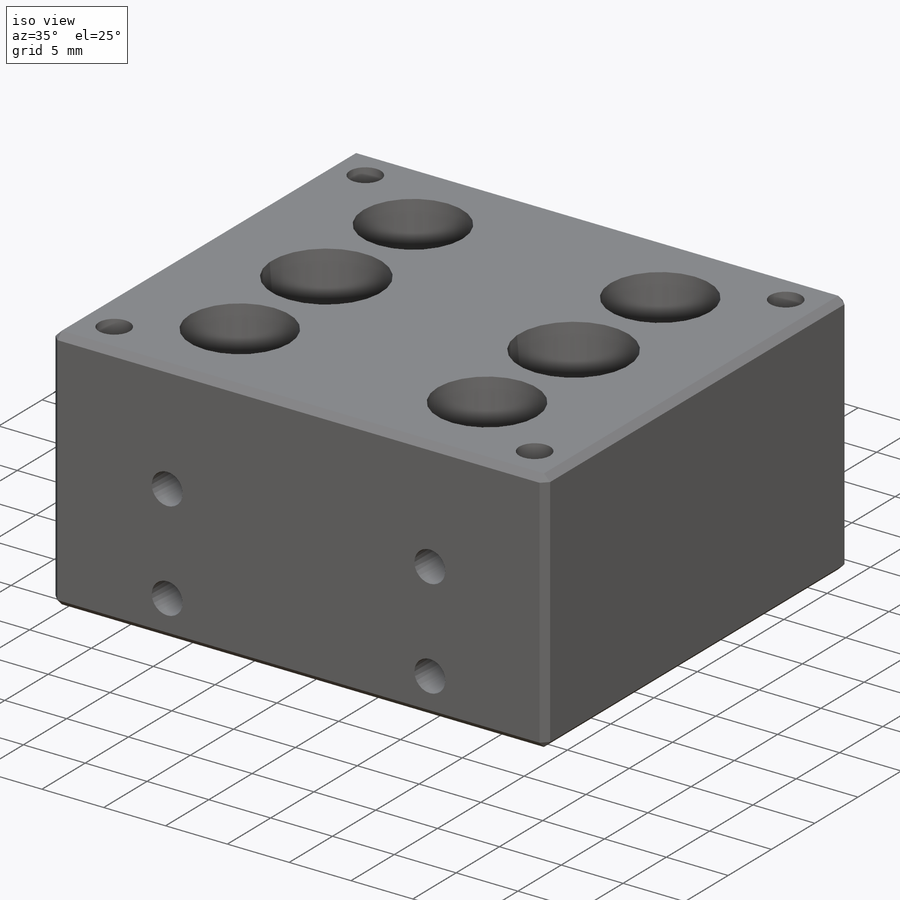
[diagram: iso view]
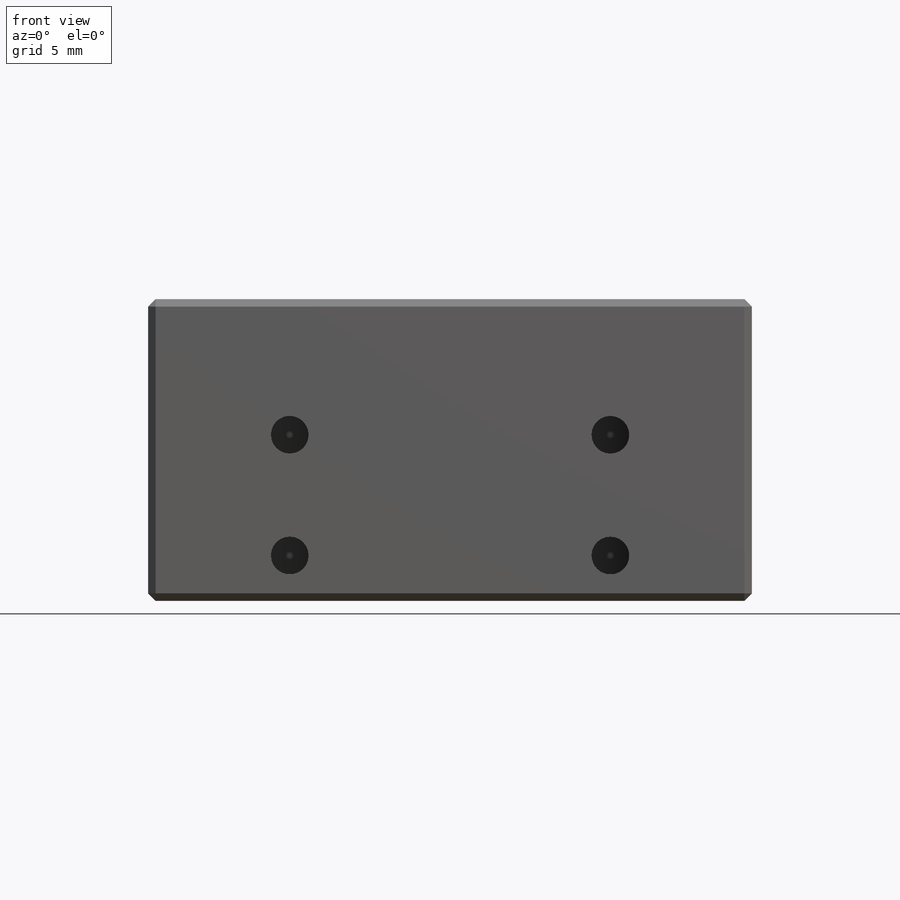
[diagram: front view]
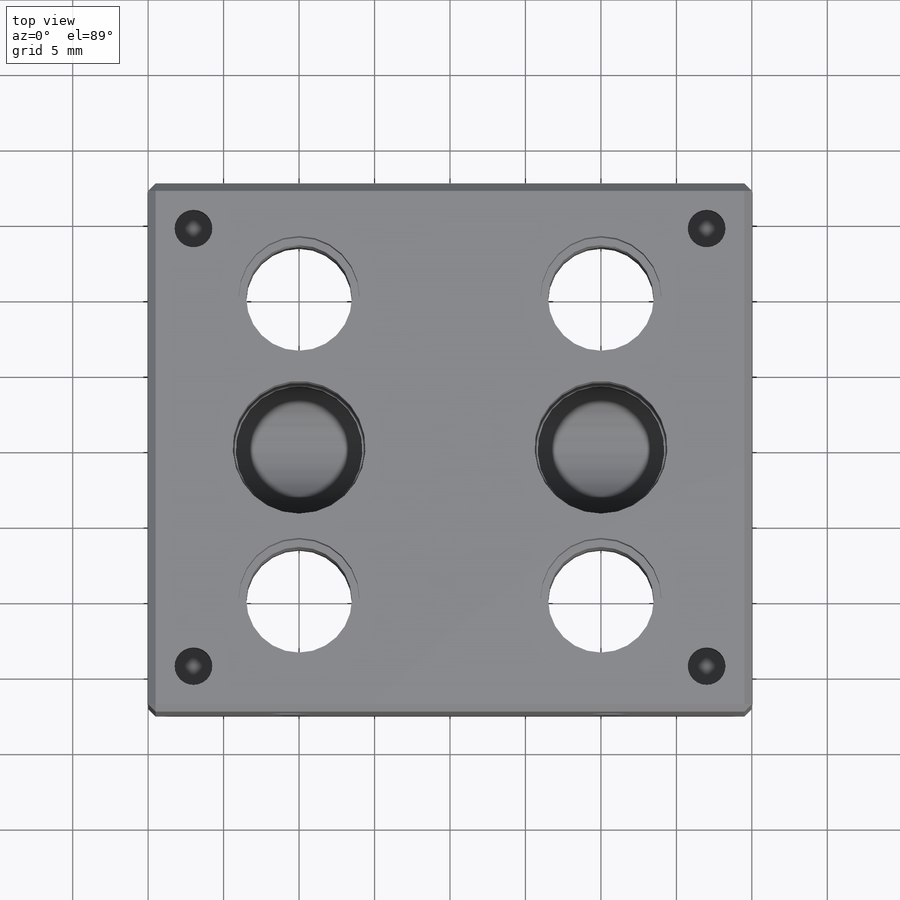
[diagram: top view]
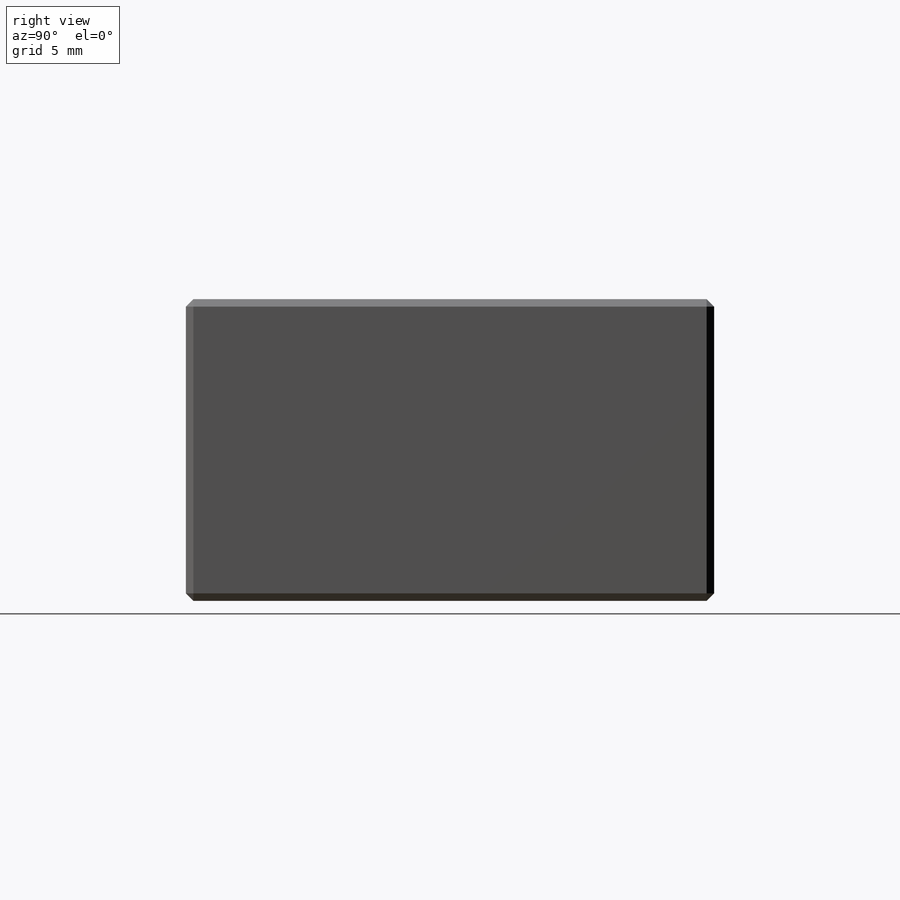
[diagram: right view]
SOLIDWORKS PART (.sldprt)
format: sldprt  version: not decoded by parser v0  size: 550,400 bytes
history: native  units: mm
features: sketch x15, hole x7, material x1, extrude x1, mirror x1, chamfer x1 (+12 scaffold rows collapsed)
feature tree (38):
  scaffold x12  (default folders/planes/origin — collapsed)
  material  "AISI 304"
  sketch  "Sketch1"  dims[D1=35.0mm D2=40.0mm]
  extrude  "Boss-Extrude1"  Depth=20mm
  hole  "Tap Drill for M3x0.5 Tap1"  Diameter=2.5mm Depth=4mm
  sketch  "Sketch4"  dims[c1.D1=3.0mm c1.D2=3.0mm c2.D1=34.0mm c2.D2=29.0mm c2.D3=35.0mm]
  sketch  "Sketch3"  dims[hole-wizard template sketch: 49 standard entries collapsed; hole parameters kept: c15.Drill Angle=180.0deg]
  hole  "Ø8.4 (8.4) Diameter Hole2"  Diameter=8.4mm Depth=15mm
  sketch  "Sketch9"  dims[D1=20.0mm]
  sketch  "Sketch8"  dims[hole-wizard template sketch: 46 standard entries collapsed; hole parameters kept: c15.Hole Dia.=8.4mm c15.Hole Depth=15.0mm c15.D3=~14.816244mm c15.Drill Angle=118.0deg]
  hole  "Ø8.4 (8.4) Diameter Hole1"  Diameter=8.4mm Depth=35mm
  sketch  "Sketch11"  dims[D1=5.0mm]
  sketch  "Sketch10"  dims[hole-wizard template sketch: 46 standard entries collapsed; hole parameters kept: c15.Hole Dia.=8.4mm c15.Hole Depth=35.0mm c15.D3=~14.816244mm c15.Drill Angle=118.0deg]
  hole  "Ø7.0 (7) Diameter Hole1"  Diameter=7mm Depth=15mm
  sketch  "Sketch13"  dims[D1=20.0mm D2=20.0mm]
  sketch  "Sketch12"  dims[hole-wizard template sketch: 46 standard entries collapsed; hole parameters kept: c15.Hole Dia.=7.0mm c15.Hole Depth=15.0mm c15.D3=~14.816244mm c15.Drill Angle=118.0deg]
  hole  "Ø8.0 (8) Diameter Hole1"  Diameter=8mm Depth=5.5mm
  sketch  "Sketch15"
  sketch  "Sketch14"  dims[hole-wizard template sketch: 46 standard entries collapsed; hole parameters kept: c15.Hole Dia.=8.0mm c15.Hole Depth=5.5mm c15.D3=~14.816244mm c15.Drill Angle=180.0deg]
  hole  "Tap Drill for M3x0.5 Tap2"  Diameter=2.5mm Depth=5.5mm
  sketch  "Sketch17"  dims[D1=~21.244286mm D2=3.0mm D3=8.0mm]
  sketch  "Sketch16"  dims[hole-wizard template sketch: 47 standard entries collapsed; hole parameters kept: c15.Hole Depth=5.5mm c15.D3=~14.816244mm c15.Drill Angle=180.0deg]
  mirror  "Mirror1"
  chamfer  "Chamfer1"  Distance=0.5mm Angle=45deg
  hole  "G1/8 Tapped Hole1"  Diameter=8.8mm Depth=10mm
  sketch  "Sketch19"
  sketch  "Sketch18"  dims[hole-wizard template sketch: 46 standard entries collapsed; hole parameters kept: c15.Tap Drill Dia.=8.8mm c15.Tap Drill Depth=10.0mm c15.D3=~14.816244mm c15.Drill Angle=180.0deg]
decode coverage: 22 of 25 modeling features carry decoded parameters
note: ~ marks probable driven/reference dimensions
summary: Diameter pulled from absorbed wizard sketch
note: suppression state not decoded; provenance and decode notes live in map.json
